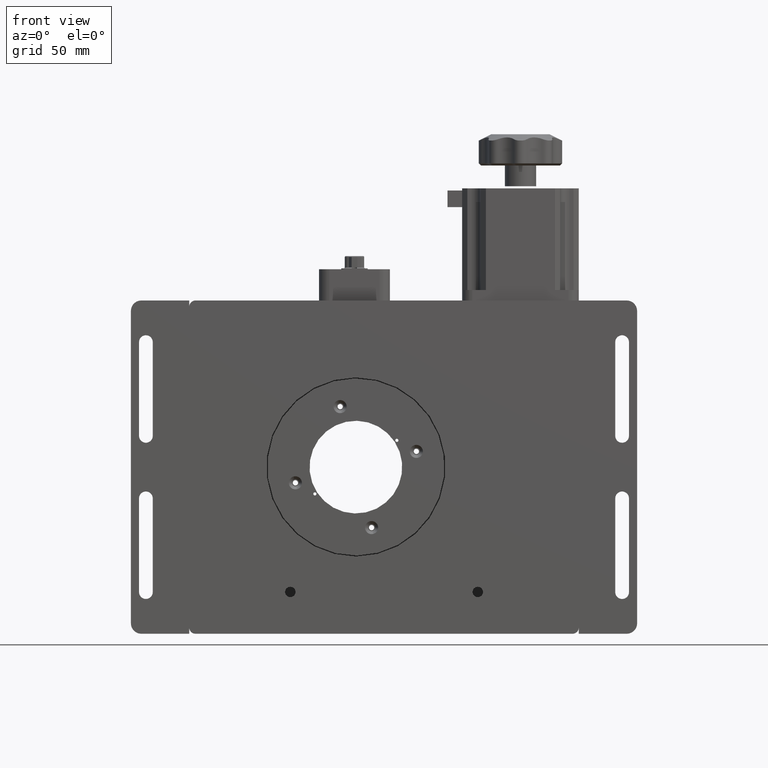
[diagram: clean part render]
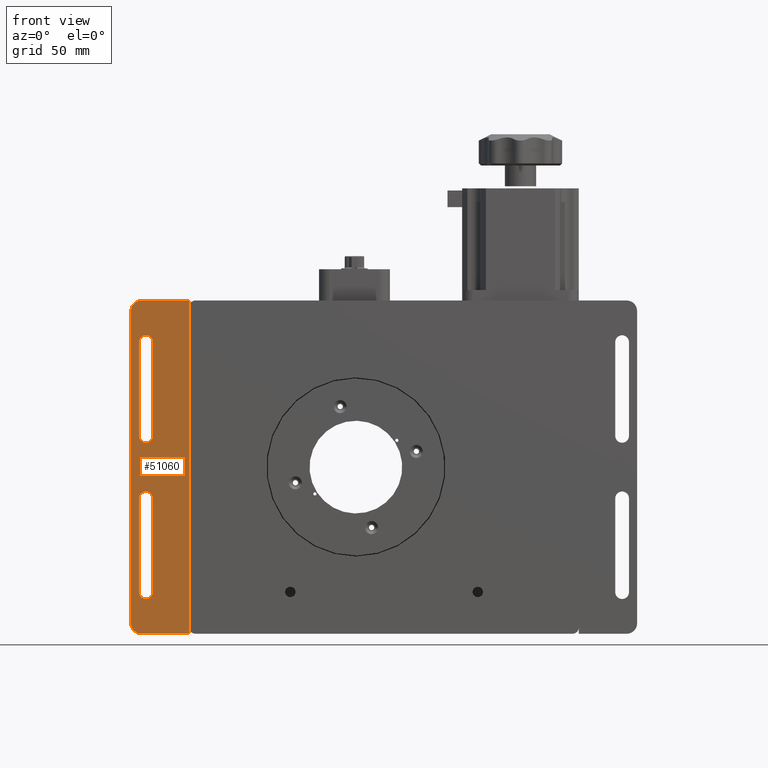
[diagram: same view with one face highlighted and labeled with its STEP entity id]
A machine part, front view. The second image highlights one B-rep face of the part: STEP entity #51060.
In plain terms, the highlighted planar face has unit normal (-0, 1, 0).
Its self-contained STEP definition (entity closure, byte-faithful):
#74 = DIRECTION ( 'NONE',  ( 1.046312889825572800E-016, -1.000000000000000000, -2.312964634635740700E-018 ) ) ;
#1028 = EDGE_CURVE ( 'NONE', #72166, #32189, #18888, .T. ) ;
#1491 = CARTESIAN_POINT ( 'NONE',  ( 65.49999999999990100, -7.499999999999989300, -75.00000000000001400 ) ) ;
#2033 = AXIS2_PLACEMENT_3D ( 'NONE', #98364, #49039, #106640 ) ;
#2742 = EDGE_CURVE ( 'NONE', #12118, #32189, #5577, .T. ) ;
#3389 = CARTESIAN_POINT ( 'NONE',  ( 75.99999999999988600, -7.499999999999989300, 14.99999999999997900 ) ) ;
#3851 = ORIENTED_EDGE ( 'NONE', *, *, #54607, .T. ) ;
#5439 = VERTEX_POINT ( 'NONE', #7176 ) ;
#5577 = LINE ( 'NONE', #57766, #24932 ) ;
#7176 = CARTESIAN_POINT ( 'NONE',  ( 75.99999999999988600, -7.499999999999989300, -60.00000000000000700 ) ) ;
#7488 = AXIS2_PLACEMENT_3D ( 'NONE', #11417, #69068, #19711 ) ;
#7826 = ORIENTED_EDGE ( 'NONE', *, *, #66708, .T. ) ;
#8032 = CARTESIAN_POINT ( 'NONE',  ( 65.49999999999991500, -7.499999999999989300, 79.99999999999998600 ) ) ;
#8576 = CARTESIAN_POINT ( 'NONE',  ( 72.69999999999990300, -7.499999999999989300, 59.99999999999997900 ) ) ;
#9418 = EDGE_CURVE ( 'NONE', #47817, #12118, #77503, .T. ) ;
#9704 = CARTESIAN_POINT ( 'NONE',  ( 69.39999999999992000, -7.499999999999989300, 59.99999999999997900 ) ) ;
#11026 = VECTOR ( 'NONE', #16303, 1000.000000000000000 ) ;
#11417 = CARTESIAN_POINT ( 'NONE',  ( 72.69999999999990300, -7.499999999999989300, -15.00000000000001400 ) ) ;
#12118 = VERTEX_POINT ( 'NONE', #50270 ) ;
#12736 = VERTEX_POINT ( 'NONE', #3389 ) ;
#12834 = EDGE_CURVE ( 'NONE', #70816, #5439, #86036, .T. ) ;
#14497 = VECTOR ( 'NONE', #78982, 1000.000000000000000 ) ;
#14547 = FACE_BOUND ( 'NONE', #104582, .T. ) ;
#14976 = EDGE_LOOP ( 'NONE', ( #70576, #58751, #79084, #26436, #27348, #7826 ) ) ;
#14979 = DIRECTION ( 'NONE',  ( -1.046312889825572800E-016, 1.000000000000000000, 2.312964634635740700E-018 ) ) ;
#15446 = VERTEX_POINT ( 'NONE', #98103 ) ;
#16303 = DIRECTION ( 'NONE',  ( 1.000000000000000000, 1.046312889825572900E-016, -5.551115123125782100E-017 ) ) ;
#16825 = DIRECTION ( 'NONE',  ( 0.0000000000000000000, 0.0000000000000000000, 1.000000000000000000 ) ) ;
#17273 = AXIS2_PLACEMENT_3D ( 'NONE', #8576, #66196, #16825 ) ;
#17612 = DIRECTION ( 'NONE',  ( 3.060823199834633200E-016, -2.312964634635716100E-018, 1.000000000000000000 ) ) ;
#18888 = LINE ( 'NONE', #90501, #103929 ) ;
#19039 = EDGE_CURVE ( 'NONE', #15446, #105439, #36428, .T. ) ;
#19711 = DIRECTION ( 'NONE',  ( 0.0000000000000000000, 0.0000000000000000000, 1.000000000000000000 ) ) ;
#20098 = EDGE_CURVE ( 'NONE', #100525, #47817, #22573, .T. ) ;
#20266 = VECTOR ( 'NONE', #56271, 1000.000000000000000 ) ;
#20491 = DIRECTION ( 'NONE',  ( -5.551115123125782700E-017, 2.312964634635742300E-018, -1.000000000000000000 ) ) ;
#21256 = LINE ( 'NONE', #9704, #98605 ) ;
#22447 = DIRECTION ( 'NONE',  ( -1.046312889825572800E-016, 1.000000000000000000, 2.312964634635740700E-018 ) ) ;
#22573 = LINE ( 'NONE', #46293, #96003 ) ;
#24932 = VECTOR ( 'NONE', #33640, 1000.000000000000000 ) ;
#25608 = CARTESIAN_POINT ( 'NONE',  ( 65.49999999999991500, -7.499999999999989300, 79.99999999999998600 ) ) ;
#25733 = CIRCLE ( 'NONE', #7488, 3.299999999999997200 ) ;
#26436 = ORIENTED_EDGE ( 'NONE', *, *, #1028, .F. ) ;
#27348 = ORIENTED_EDGE ( 'NONE', *, *, #56940, .F. ) ;
#32189 = VERTEX_POINT ( 'NONE', #45877 ) ;
#32840 = CIRCLE ( 'NONE', #95508, 3.299999999999997200 ) ;
#32997 = LINE ( 'NONE', #8032, #11026 ) ;
#33640 = DIRECTION ( 'NONE',  ( 1.000000000000000000, 1.046312889825572900E-016, -5.551115123125782100E-017 ) ) ;
#33886 = DIRECTION ( 'NONE',  ( 5.551115123125782700E-017, -2.312964634635742300E-018, 1.000000000000000000 ) ) ;
#33920 = FACE_OUTER_BOUND ( 'NONE', #14976, .T. ) ;
#34424 = EDGE_CURVE ( 'NONE', #59328, #93747, #78373, .T. ) ;
#34909 = DIRECTION ( 'NONE',  ( -1.046312889825572800E-016, 1.000000000000000000, 2.312964634635740700E-018 ) ) ;
#36290 = CARTESIAN_POINT ( 'NONE',  ( 69.39999999999990600, -7.499999999999989300, -15.00000000000001400 ) ) ;
#36428 = LINE ( 'NONE', #86609, #14497 ) ;
#36820 = DIRECTION ( 'NONE',  ( -1.046312889825572800E-016, 1.000000000000000000, 2.312964634635740700E-018 ) ) ;
#40001 = LINE ( 'NONE', #57709, #81228 ) ;
#44015 = CIRCLE ( 'NONE', #105235, 3.299999999999997200 ) ;
#44207 = ORIENTED_EDGE ( 'NONE', *, *, #34424, .T. ) ;
#45853 = ORIENTED_EDGE ( 'NONE', *, *, #68431, .T. ) ;
#45877 = CARTESIAN_POINT ( 'NONE',  ( 93.49999999999990100, -7.499999999999985800, -80.00000000000001400 ) ) ;
#46293 = CARTESIAN_POINT ( 'NONE',  ( 65.49999999999991500, -7.499999999999989300, 79.99999999999998600 ) ) ;
#47817 = VERTEX_POINT ( 'NONE', #1491 ) ;
#48815 = EDGE_CURVE ( 'NONE', #12736, #101712, #70653, .T. ) ;
#49039 = DIRECTION ( 'NONE',  ( 1.046312889825572800E-016, -1.000000000000000000, -2.312964634635740700E-018 ) ) ;
#49385 = CARTESIAN_POINT ( 'NONE',  ( 70.49999999999991500, -7.499999999999989300, -75.00000000000001400 ) ) ;
#50270 = CARTESIAN_POINT ( 'NONE',  ( 70.49999999999990100, -7.499999999999989300, -80.00000000000001400 ) ) ;
#50847 = VERTEX_POINT ( 'NONE', #77146 ) ;
#51060 = ADVANCED_FACE ( 'NONE', ( #14547, #55804, #33920 ), #82893, .F. ) ;
#52043 = AXIS2_PLACEMENT_3D ( 'NONE', #49385, #74, #57668 ) ;
#52315 = ORIENTED_EDGE ( 'NONE', *, *, #12834, .T. ) ;
#54607 = EDGE_CURVE ( 'NONE', #50847, #70816, #44015, .T. ) ;
#55804 = FACE_BOUND ( 'NONE', #87503, .T. ) ;
#56198 = AXIS2_PLACEMENT_3D ( 'NONE', #71745, #22447, #80042 ) ;
#56271 = DIRECTION ( 'NONE',  ( -5.551115123125782700E-017, 2.312964634635742300E-018, -1.000000000000000000 ) ) ;
#56940 = EDGE_CURVE ( 'NONE', #81538, #72166, #32997, .T. ) ;
#57668 = DIRECTION ( 'NONE',  ( 0.0000000000000000000, 0.0000000000000000000, 1.000000000000000000 ) ) ;
#57709 = CARTESIAN_POINT ( 'NONE',  ( 75.99999999999990100, -7.499999999999989300, 59.99999999999996400 ) ) ;
#57720 = EDGE_CURVE ( 'NONE', #105439, #50847, #25733, .T. ) ;
#57766 = CARTESIAN_POINT ( 'NONE',  ( 65.49999999999990100, -7.499999999999989300, -80.00000000000001400 ) ) ;
#58425 = ORIENTED_EDGE ( 'NONE', *, *, #48815, .T. ) ;
#58751 = ORIENTED_EDGE ( 'NONE', *, *, #9418, .T. ) ;
#59328 = VERTEX_POINT ( 'NONE', #73356 ) ;
#59349 = ORIENTED_EDGE ( 'NONE', *, *, #57720, .T. ) ;
#60200 = CARTESIAN_POINT ( 'NONE',  ( 70.49999999999991500, -7.499999999999989300, 79.99999999999998600 ) ) ;
#61691 = ORIENTED_EDGE ( 'NONE', *, *, #81881, .T. ) ;
#63018 = VERTEX_POINT ( 'NONE', #64405 ) ;
#63859 = CARTESIAN_POINT ( 'NONE',  ( 75.99999999999988600, -7.499999999999989300, -60.00000000000000700 ) ) ;
#64347 = CARTESIAN_POINT ( 'NONE',  ( 72.69999999999990300, -7.499999999999989300, -15.00000000000001400 ) ) ;
#64405 = CARTESIAN_POINT ( 'NONE',  ( 69.39999999999992000, -7.499999999999989300, 59.99999999999997900 ) ) ;
#65996 = DIRECTION ( 'NONE',  ( -2.868076146948322200E-016, 2.312964634635718400E-018, -1.000000000000000000 ) ) ;
#66196 = DIRECTION ( 'NONE',  ( -1.046312889825572800E-016, 1.000000000000000000, 2.312964634635740700E-018 ) ) ;
#66708 = EDGE_CURVE ( 'NONE', #81538, #100525, #74236, .T. ) ;
#67087 = AXIS2_PLACEMENT_3D ( 'NONE', #25608, #83238, #33886 ) ;
#68431 = EDGE_CURVE ( 'NONE', #63018, #59328, #93309, .T. ) ;
#69068 = DIRECTION ( 'NONE',  ( -1.046312889825572800E-016, 1.000000000000000000, 2.312964634635740700E-018 ) ) ;
#70576 = ORIENTED_EDGE ( 'NONE', *, *, #20098, .T. ) ;
#70653 = CIRCLE ( 'NONE', #91085, 3.299999999999997200 ) ;
#70816 = VERTEX_POINT ( 'NONE', #102017 ) ;
#71745 = CARTESIAN_POINT ( 'NONE',  ( 72.69999999999990300, -7.499999999999989300, 59.99999999999997900 ) ) ;
#72166 = VERTEX_POINT ( 'NONE', #100763 ) ;
#72622 = DIRECTION ( 'NONE',  ( 0.0000000000000000000, 0.0000000000000000000, 1.000000000000000000 ) ) ;
#73356 = CARTESIAN_POINT ( 'NONE',  ( 72.69999999999990300, -7.499999999999989300, 63.29999999999996900 ) ) ;
#74236 = CIRCLE ( 'NONE', #2033, 5.000000000000004400 ) ;
#77146 = CARTESIAN_POINT ( 'NONE',  ( 72.69999999999990300, -7.499999999999989300, -11.70000000000001500 ) ) ;
#77503 = CIRCLE ( 'NONE', #52043, 5.000000000000004400 ) ;
#78373 = CIRCLE ( 'NONE', #56198, 3.299999999999990500 ) ;
#78982 = DIRECTION ( 'NONE',  ( 5.551115123125782700E-017, -2.312964634635742300E-018, 1.000000000000000000 ) ) ;
#79084 = ORIENTED_EDGE ( 'NONE', *, *, #2742, .T. ) ;
#80042 = DIRECTION ( 'NONE',  ( 0.0000000000000000000, 0.0000000000000000000, 1.000000000000000000 ) ) ;
#81228 = VECTOR ( 'NONE', #65996, 1000.000000000000000 ) ;
#81538 = VERTEX_POINT ( 'NONE', #60200 ) ;
#81881 = EDGE_CURVE ( 'NONE', #5439, #15446, #32840, .T. ) ;
#82893 = PLANE ( 'NONE',  #67087 ) ;
#83238 = DIRECTION ( 'NONE',  ( -1.046312889825572800E-016, 1.000000000000000000, 2.312964634635748100E-018 ) ) ;
#84265 = CARTESIAN_POINT ( 'NONE',  ( 72.69999999999988900, -7.499999999999989300, -60.00000000000000700 ) ) ;
#86036 = LINE ( 'NONE', #63859, #20266 ) ;
#86174 = CARTESIAN_POINT ( 'NONE',  ( 72.69999999999990300, -7.499999999999989300, 14.99999999999997900 ) ) ;
#86341 = EDGE_CURVE ( 'NONE', #93747, #12736, #40001, .T. ) ;
#86609 = CARTESIAN_POINT ( 'NONE',  ( 69.39999999999990600, -7.499999999999989300, -60.00000000000000700 ) ) ;
#87503 = EDGE_LOOP ( 'NONE', ( #59349, #3851, #52315, #61691, #90061 ) ) ;
#88251 = ORIENTED_EDGE ( 'NONE', *, *, #86341, .T. ) ;
#90061 = ORIENTED_EDGE ( 'NONE', *, *, #19039, .T. ) ;
#90501 = CARTESIAN_POINT ( 'NONE',  ( 93.49999999999991500, -7.499999999999985800, 79.99999999999998600 ) ) ;
#90816 = CARTESIAN_POINT ( 'NONE',  ( 65.49999999999990100, -7.499999999999989300, 74.99999999999998600 ) ) ;
#91085 = AXIS2_PLACEMENT_3D ( 'NONE', #86174, #36820, #94432 ) ;
#92452 = CARTESIAN_POINT ( 'NONE',  ( 75.99999999999990100, -7.499999999999989300, 59.99999999999996400 ) ) ;
#92533 = DIRECTION ( 'NONE',  ( 0.0000000000000000000, 0.0000000000000000000, 1.000000000000000000 ) ) ;
#93309 = CIRCLE ( 'NONE', #17273, 3.299999999999990500 ) ;
#93747 = VERTEX_POINT ( 'NONE', #92452 ) ;
#94432 = DIRECTION ( 'NONE',  ( 0.0000000000000000000, 0.0000000000000000000, 1.000000000000000000 ) ) ;
#94678 = EDGE_CURVE ( 'NONE', #101712, #63018, #21256, .T. ) ;
#95508 = AXIS2_PLACEMENT_3D ( 'NONE', #84265, #34909, #92533 ) ;
#96003 = VECTOR ( 'NONE', #103884, 1000.000000000000000 ) ;
#96361 = CARTESIAN_POINT ( 'NONE',  ( 69.39999999999990600, -7.499999999999989300, 14.99999999999997900 ) ) ;
#98103 = CARTESIAN_POINT ( 'NONE',  ( 69.39999999999989200, -7.499999999999989300, -60.00000000000000700 ) ) ;
#98364 = CARTESIAN_POINT ( 'NONE',  ( 70.49999999999991500, -7.499999999999989300, 74.99999999999998600 ) ) ;
#98605 = VECTOR ( 'NONE', #17612, 1000.000000000000000 ) ;
#100525 = VERTEX_POINT ( 'NONE', #90816 ) ;
#100763 = CARTESIAN_POINT ( 'NONE',  ( 93.49999999999991500, -7.499999999999985800, 79.99999999999998600 ) ) ;
#101017 = ORIENTED_EDGE ( 'NONE', *, *, #94678, .T. ) ;
#101712 = VERTEX_POINT ( 'NONE', #96361 ) ;
#102017 = CARTESIAN_POINT ( 'NONE',  ( 75.99999999999988600, -7.499999999999989300, -15.00000000000001400 ) ) ;
#103884 = DIRECTION ( 'NONE',  ( -5.551115123125782700E-017, 2.312964634635742300E-018, -1.000000000000000000 ) ) ;
#103929 = VECTOR ( 'NONE', #20491, 1000.000000000000000 ) ;
#104582 = EDGE_LOOP ( 'NONE', ( #45853, #44207, #88251, #58425, #101017 ) ) ;
#105235 = AXIS2_PLACEMENT_3D ( 'NONE', #64347, #14979, #72622 ) ;
#105439 = VERTEX_POINT ( 'NONE', #36290 ) ;
#106640 = DIRECTION ( 'NONE',  ( 0.0000000000000000000, 0.0000000000000000000, 1.000000000000000000 ) ) ;